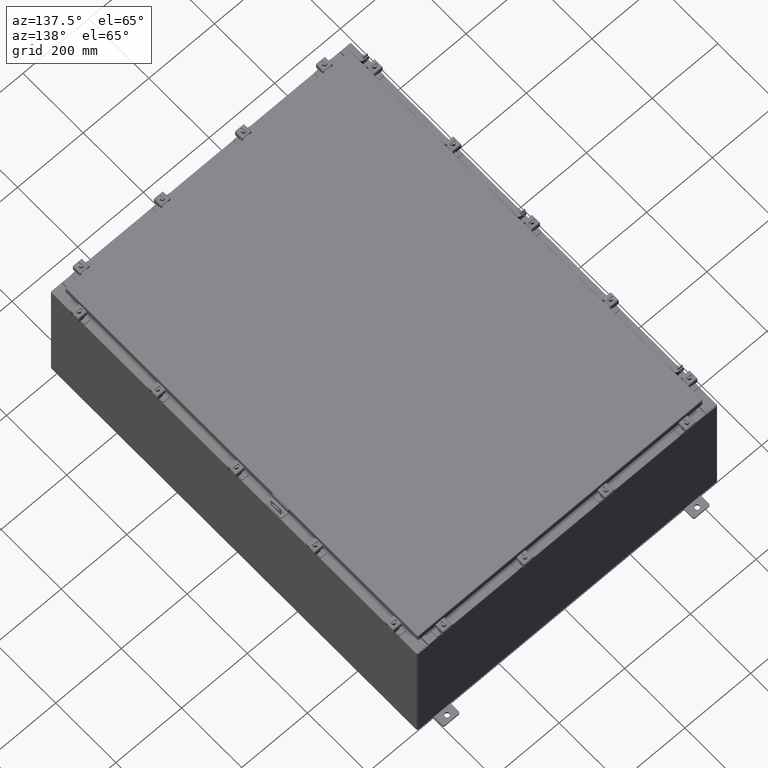
[diagram: clean part render]
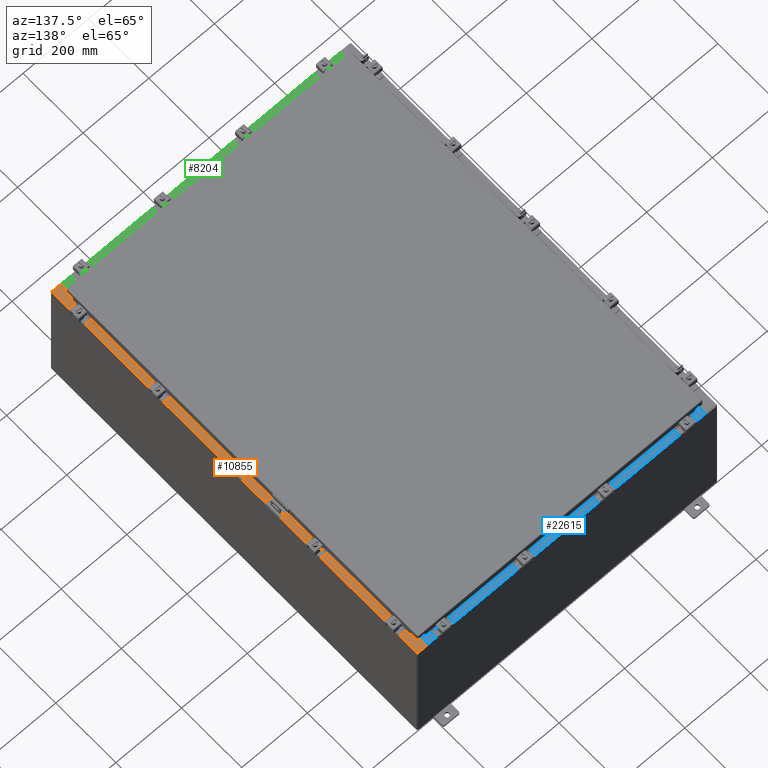
[diagram: same view with three faces highlighted in distinct colors, each labeled with its STEP entity id]
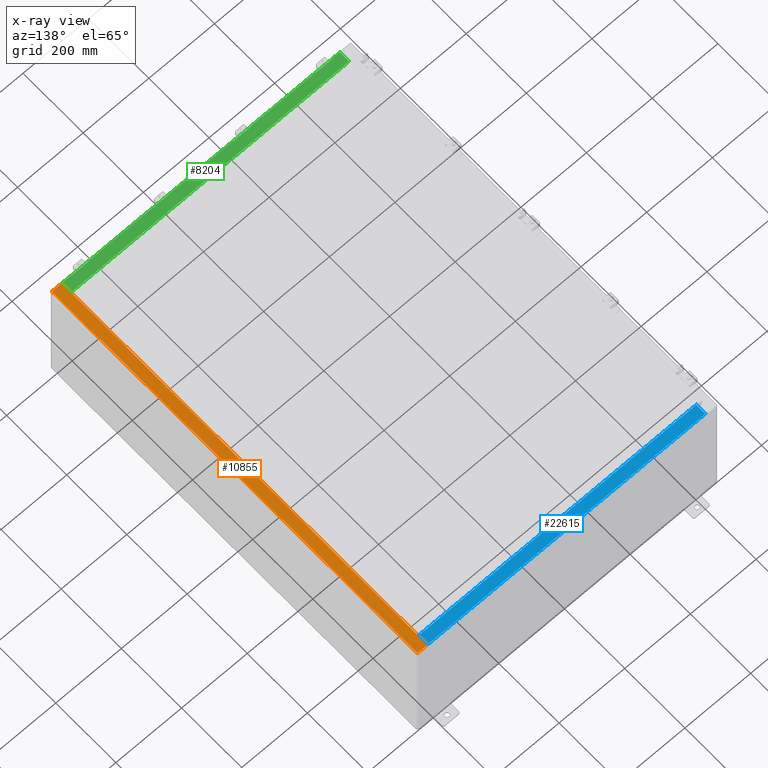
[diagram: x-ray of the same camera — body ghosted, the three highlighted faces saturated]
A machine part, auxiliary view with three faces highlighted in distinct colors.
The next image is the same camera in x-ray (body ghosted, the three faces saturated) — at least one of them is partly hidden behind the body in this view.
Their STEP definitions:

[orange] entity #10855 — the highlighted planar face has unit normal (-0, 0, -1).
#824 = VERTEX_POINT ( 'NONE', #6807 ) ;
#983 = CARTESIAN_POINT ( 'NONE',  ( 16.69970000000005000, 22.63109999999996800, 15.92530000000000500 ) ) ;
#1203 = VERTEX_POINT ( 'NONE', #22691 ) ;
#1245 = CARTESIAN_POINT ( 'NONE',  ( 16.75005000000005100, -22.63109999999998600, 15.92530000000000500 ) ) ;
#1679 = CARTESIAN_POINT ( 'NONE',  ( 16.71270000000005100, -22.59374999999998900, 15.92530000000000900 ) ) ;
#3696 = DIRECTION ( 'NONE',  ( 7.132762385546384700E-015, 0.0000000000000000000, 1.000000000000000000 ) ) ;
#4086 = CARTESIAN_POINT ( 'NONE',  ( 1.138497651359581700E-013, 0.0000000000000000000, 15.92530000000012600 ) ) ;
#4172 = DIRECTION ( 'NONE',  ( -7.132762385546384700E-015, 0.0000000000000000000, -1.000000000000000000 ) ) ;
#4462 = LINE ( 'NONE', #13480, #14972 ) ;
#5006 = ORIENTED_EDGE ( 'NONE', *, *, #17280, .F. ) ;
#5272 = VERTEX_POINT ( 'NONE', #19624 ) ;
#5461 = AXIS2_PLACEMENT_3D ( 'NONE', #20536, #7920, #22649 ) ;
#5602 = DIRECTION ( 'NONE',  ( 1.000000000000000000, 0.0000000000000000000, 0.0000000000000000000 ) ) ;
#5778 = DIRECTION ( 'NONE',  ( -0.0000000000000000000, -1.000000000000000000, -0.0000000000000000000 ) ) ;
#5868 = CARTESIAN_POINT ( 'NONE',  ( 17.91230000000005200, -23.92529999999998900, 15.92530000000000000 ) ) ;
#5902 = DIRECTION ( 'NONE',  ( -1.000000000000000000, 0.0000000000000000000, -4.340572780400098900E-014 ) ) ;
#5942 = CARTESIAN_POINT ( 'NONE',  ( 1.138497651359581700E-013, -23.92529999999998900, 15.92530000000012600 ) ) ;
#6003 = VERTEX_POINT ( 'NONE', #983 ) ;
#6107 = VERTEX_POINT ( 'NONE', #1245 ) ;
#6416 = VERTEX_POINT ( 'NONE', #8886 ) ;
#6487 = LINE ( 'NONE', #21215, #18319 ) ;
#6495 = EDGE_LOOP ( 'NONE', ( #5006, #12977, #20453, #10495, #27166, #11652, #8290, #20689, #17296, #9742, #11598, #8483 ) ) ;
#6753 = CARTESIAN_POINT ( 'NONE',  ( 16.71270000000005100, 22.59374999999997200, 15.92530000000000900 ) ) ;
#6807 = CARTESIAN_POINT ( 'NONE',  ( 16.69970000000005000, -23.92529999999998900, 15.92530000000000500 ) ) ;
#7822 = VECTOR ( 'NONE', #8608, 39.37007874015748100 ) ;
#7920 = DIRECTION ( 'NONE',  ( 7.132762385546384700E-015, 0.0000000000000000000, 1.000000000000000000 ) ) ;
#8035 = DIRECTION ( 'NONE',  ( -0.0000000000000000000, 1.000000000000000000, -0.0000000000000000000 ) ) ;
#8050 = DIRECTION ( 'NONE',  ( 1.000000000000000000, 8.144358738339254500E-032, -7.132762385546384700E-015 ) ) ;
#8174 = CARTESIAN_POINT ( 'NONE',  ( 16.75005000000005100, 22.59374999999997200, 15.92530000000000500 ) ) ;
#8290 = ORIENTED_EDGE ( 'NONE', *, *, #18838, .F. ) ;
#8483 = ORIENTED_EDGE ( 'NONE', *, *, #9554, .F. ) ;
#8608 = DIRECTION ( 'NONE',  ( -1.000000000000000000, 4.379057701015053300E-047, 7.132762385546384700E-015 ) ) ;
#8886 = CARTESIAN_POINT ( 'NONE',  ( 16.69970000000005000, -22.63109999999998600, 15.92530000000000500 ) ) ;
#9361 = EDGE_CURVE ( 'NONE', #5272, #21758, #4462, .T. ) ;
#9554 = EDGE_CURVE ( 'NONE', #6107, #5272, #11674, .T. ) ;
#9688 = LINE ( 'NONE', #20414, #25802 ) ;
#9742 = ORIENTED_EDGE ( 'NONE', *, *, #16205, .F. ) ;
#9794 = LINE ( 'NONE', #21238, #7822 ) ;
#9930 = CARTESIAN_POINT ( 'NONE',  ( 17.91230000000005200, -23.92529999999998900, 15.92530000000000000 ) ) ;
#10081 = CARTESIAN_POINT ( 'NONE',  ( 17.91230000000005200, 23.92529999999998600, 15.92530000000000000 ) ) ;
#10270 = VERTEX_POINT ( 'NONE', #10081 ) ;
#10495 = ORIENTED_EDGE ( 'NONE', *, *, #22130, .F. ) ;
#10855 = ADVANCED_FACE ( 'NONE', ( #19525 ), #18791, .F. ) ;
#11483 = LINE ( 'NONE', #5868, #22044 ) ;
#11582 = DIRECTION ( 'NONE',  ( 1.000000000000000000, 0.0000000000000000000, 4.340572780400098900E-014 ) ) ;
#11598 = ORIENTED_EDGE ( 'NONE', *, *, #9361, .F. ) ;
#11652 = ORIENTED_EDGE ( 'NONE', *, *, #15823, .T. ) ;
#11674 = CIRCLE ( 'NONE', #27044, 0.01867499999999949400 ) ;
#12324 = LINE ( 'NONE', #26291, #22863 ) ;
#12555 = DIRECTION ( 'NONE',  ( 3.161623214578966600E-031, -1.000000000000000000, -2.255110714221909800E-045 ) ) ;
#12977 = ORIENTED_EDGE ( 'NONE', *, *, #17480, .T. ) ;
#13060 = VERTEX_POINT ( 'NONE', #6753 ) ;
#13324 = VECTOR ( 'NONE', #22709, 39.37007874015748100 ) ;
#13480 = CARTESIAN_POINT ( 'NONE',  ( 16.75005000000005100, -22.59374999999998900, 15.92530000000000900 ) ) ;
#13801 = CIRCLE ( 'NONE', #5461, 0.01867499999999949400 ) ;
#14385 = EDGE_CURVE ( 'NONE', #24689, #1203, #13801, .T. ) ;
#14972 = VECTOR ( 'NONE', #26064, 39.37007874015748100 ) ;
#15050 = VECTOR ( 'NONE', #8050, 39.37007874015748100 ) ;
#15247 = EDGE_CURVE ( 'NONE', #10270, #24756, #9794, .T. ) ;
#15256 = LINE ( 'NONE', #18495, #21546 ) ;
#15340 = VECTOR ( 'NONE', #8035, 39.37007874015748100 ) ;
#15707 = LINE ( 'NONE', #5942, #15050 ) ;
#15823 = EDGE_CURVE ( 'NONE', #24756, #6003, #6487, .T. ) ;
#16205 = EDGE_CURVE ( 'NONE', #21758, #13060, #20951, .T. ) ;
#16307 = CARTESIAN_POINT ( 'NONE',  ( 16.75005000000005100, -22.61242499999998800, 15.92530000000000900 ) ) ;
#17280 = EDGE_CURVE ( 'NONE', #6416, #6107, #12324, .T. ) ;
#17296 = ORIENTED_EDGE ( 'NONE', *, *, #17422, .F. ) ;
#17422 = EDGE_CURVE ( 'NONE', #13060, #24689, #9688, .T. ) ;
#17480 = EDGE_CURVE ( 'NONE', #6416, #824, #20230, .T. ) ;
#18319 = VECTOR ( 'NONE', #12555, 39.37007874015748100 ) ;
#18406 = DIRECTION ( 'NONE',  ( 1.000000000000000000, 0.0000000000000000000, 0.0000000000000000000 ) ) ;
#18495 = CARTESIAN_POINT ( 'NONE',  ( 16.75005000000005100, 22.63109999999996800, 15.92530000000000900 ) ) ;
#18791 = PLANE ( 'NONE',  #24442 ) ;
#18838 = EDGE_CURVE ( 'NONE', #1203, #6003, #15256, .T. ) ;
#18889 = DIRECTION ( 'NONE',  ( -1.000000000000000000, 0.0000000000000000000, 7.132762385546384700E-015 ) ) ;
#19525 = FACE_OUTER_BOUND ( 'NONE', #6495, .T. ) ;
#19624 = CARTESIAN_POINT ( 'NONE',  ( 16.75005000000005100, -22.59374999999998900, 15.92530000000000500 ) ) ;
#20230 = LINE ( 'NONE', #24822, #13324 ) ;
#20414 = CARTESIAN_POINT ( 'NONE',  ( 16.71270000000005100, 22.59374999999997200, 15.92530000000000900 ) ) ;
#20453 = ORIENTED_EDGE ( 'NONE', *, *, #23322, .T. ) ;
#20536 = CARTESIAN_POINT ( 'NONE',  ( 16.75005000000005100, 22.61242499999997000, 15.92530000000000900 ) ) ;
#20689 = ORIENTED_EDGE ( 'NONE', *, *, #14385, .F. ) ;
#20951 = LINE ( 'NONE', #1679, #15340 ) ;
#21215 = CARTESIAN_POINT ( 'NONE',  ( 16.69970000000005000, 0.0000000000000000000, 15.92530000000000500 ) ) ;
#21238 = CARTESIAN_POINT ( 'NONE',  ( 1.138497651359581700E-013, 23.92529999999998600, 15.92530000000012600 ) ) ;
#21546 = VECTOR ( 'NONE', #5902, 39.37007874015748100 ) ;
#21758 = VERTEX_POINT ( 'NONE', #23833 ) ;
#22044 = VECTOR ( 'NONE', #5778, 39.37007874015748100 ) ;
#22130 = EDGE_CURVE ( 'NONE', #10270, #22629, #11483, .T. ) ;
#22629 = VERTEX_POINT ( 'NONE', #9930 ) ;
#22649 = DIRECTION ( 'NONE',  ( 1.000000000000000000, 0.0000000000000000000, 0.0000000000000000000 ) ) ;
#22691 = CARTESIAN_POINT ( 'NONE',  ( 16.75005000000005100, 22.63109999999996800, 15.92530000000000500 ) ) ;
#22709 = DIRECTION ( 'NONE',  ( 3.161623214578966600E-031, -1.000000000000000000, -2.255110714221909800E-045 ) ) ;
#22863 = VECTOR ( 'NONE', #11582, 39.37007874015748100 ) ;
#23322 = EDGE_CURVE ( 'NONE', #824, #22629, #15707, .T. ) ;
#23833 = CARTESIAN_POINT ( 'NONE',  ( 16.71270000000005100, -22.59374999999998900, 15.92530000000000900 ) ) ;
#24442 = AXIS2_PLACEMENT_3D ( 'NONE', #4086, #4172, #18889 ) ;
#24689 = VERTEX_POINT ( 'NONE', #8174 ) ;
#24756 = VERTEX_POINT ( 'NONE', #25109 ) ;
#24822 = CARTESIAN_POINT ( 'NONE',  ( 16.69970000000005000, 0.0000000000000000000, 15.92530000000000500 ) ) ;
#25109 = CARTESIAN_POINT ( 'NONE',  ( 16.69970000000005000, 23.92529999999998200, 15.92530000000000500 ) ) ;
#25802 = VECTOR ( 'NONE', #5602, 39.37007874015748100 ) ;
#26064 = DIRECTION ( 'NONE',  ( -1.000000000000000000, 0.0000000000000000000, 0.0000000000000000000 ) ) ;
#26291 = CARTESIAN_POINT ( 'NONE',  ( 16.69970000000005000, -22.63109999999998600, 15.92530000000000500 ) ) ;
#27044 = AXIS2_PLACEMENT_3D ( 'NONE', #16307, #3696, #18406 ) ;
#27166 = ORIENTED_EDGE ( 'NONE', *, *, #15247, .T. ) ;

[blue] entity #22615 — the highlighted planar face has unit normal (0, 0, 1).
#234 = ORIENTED_EDGE ( 'NONE', *, *, #18678, .F. ) ;
#1870 = LINE ( 'NONE', #15342, #18019 ) ;
#2027 = LINE ( 'NONE', #6362, #11910 ) ;
#2240 = FACE_OUTER_BOUND ( 'NONE', #26824, .T. ) ;
#2808 = EDGE_CURVE ( 'NONE', #8628, #9882, #1870, .T. ) ;
#4794 = ORIENTED_EDGE ( 'NONE', *, *, #2808, .F. ) ;
#5363 = DIRECTION ( 'NONE',  ( -0.0000000000000000000, 1.000000000000000000, -3.566381192773190000E-015 ) ) ;
#5702 = DIRECTION ( 'NONE',  ( 6.568047492761433500E-017, 3.566381192773190000E-015, 1.000000000000000000 ) ) ;
#6362 = CARTESIAN_POINT ( 'NONE',  ( 5.292955487724510400E-016, -0.08770000000000026400, 8.000000000000001800 ) ) ;
#6645 = ORIENTED_EDGE ( 'NONE', *, *, #11487, .T. ) ;
#6906 = DIRECTION ( 'NONE',  ( -0.0000000000000000000, -1.000000000000000000, 3.566381192773190000E-015 ) ) ;
#7372 = LINE ( 'NONE', #15845, #12980 ) ;
#7592 = CARTESIAN_POINT ( 'NONE',  ( -16.63720000000000000, -1.287299999999999200, 8.000000000000007100 ) ) ;
#8628 = VERTEX_POINT ( 'NONE', #19209 ) ;
#8955 = VERTEX_POINT ( 'NONE', #7592 ) ;
#9204 = CARTESIAN_POINT ( 'NONE',  ( -16.63720000000000000, -0.08770000000000026400, 8.000000000000003600 ) ) ;
#9882 = VERTEX_POINT ( 'NONE', #21567 ) ;
#10010 = VERTEX_POINT ( 'NONE', #9204 ) ;
#11487 = EDGE_CURVE ( 'NONE', #8628, #10010, #2027, .T. ) ;
#11910 = VECTOR ( 'NONE', #18946, 39.37007874015748100 ) ;
#12980 = VECTOR ( 'NONE', #5363, 39.37007874015748100 ) ;
#13320 = DIRECTION ( 'NONE',  ( -1.000000000000000000, 0.0000000000000000000, 0.0000000000000000000 ) ) ;
#15342 = CARTESIAN_POINT ( 'NONE',  ( 16.63720000000000000, -1.300300000000001300, 8.000000000000003600 ) ) ;
#15406 = EDGE_CURVE ( 'NONE', #9882, #8955, #26891, .T. ) ;
#15845 = CARTESIAN_POINT ( 'NONE',  ( -16.63720000000000000, -0.07469999999999797600, 8.000000000000003600 ) ) ;
#17924 = ORIENTED_EDGE ( 'NONE', *, *, #15406, .F. ) ;
#18019 = VECTOR ( 'NONE', #6906, 39.37007874015748100 ) ;
#18292 = PLANE ( 'NONE',  #23737 ) ;
#18678 = EDGE_CURVE ( 'NONE', #8955, #10010, #7372, .T. ) ;
#18946 = DIRECTION ( 'NONE',  ( -1.000000000000000000, -6.568047492761434800E-017, 6.568047492761457000E-017 ) ) ;
#19209 = CARTESIAN_POINT ( 'NONE',  ( 16.63720000000000400, -0.08770000000000026400, 7.999999999999999100 ) ) ;
#20423 = DIRECTION ( 'NONE',  ( 0.0000000000000000000, -1.000000000000000000, 3.566381192773190000E-015 ) ) ;
#20657 = VECTOR ( 'NONE', #13320, 39.37007874015748100 ) ;
#21567 = CARTESIAN_POINT ( 'NONE',  ( 16.63720000000000000, -1.287299999999999200, 8.000000000000003600 ) ) ;
#22615 = ADVANCED_FACE ( 'NONE', ( #2240 ), #18292, .T. ) ;
#23737 = AXIS2_PLACEMENT_3D ( 'NONE', #24563, #5702, #20423 ) ;
#24563 = CARTESIAN_POINT ( 'NONE',  ( 5.292955487724510400E-016, 3.059669752903974500E-014, 8.000000000000001800 ) ) ;
#25888 = CARTESIAN_POINT ( 'NONE',  ( 16.63720000000000400, -1.287299999999999200, 8.000000000000003600 ) ) ;
#26824 = EDGE_LOOP ( 'NONE', ( #234, #17924, #4794, #6645 ) ) ;
#26891 = LINE ( 'NONE', #25888, #20657 ) ;

[green] entity #8204 — the highlighted planar face has unit normal (-0, -0, 1).
#950 = CARTESIAN_POINT ( 'NONE',  ( 16.63720000000001400, -0.08770000000000026400, 8.000000000000014200 ) ) ;
#1423 = CARTESIAN_POINT ( 'NONE',  ( -16.63719999999998600, -0.07470000000000234800, 7.999999999999983100 ) ) ;
#4657 = FACE_OUTER_BOUND ( 'NONE', #8197, .T. ) ;
#5623 = CARTESIAN_POINT ( 'NONE',  ( 16.63720000000001400, -1.287299999999999200, 8.000000000000017800 ) ) ;
#7038 = ORIENTED_EDGE ( 'NONE', *, *, #11247, .F. ) ;
#8197 = EDGE_LOOP ( 'NONE', ( #15455, #15178, #7038, #20127 ) ) ;
#8204 = ADVANCED_FACE ( 'NONE', ( #4657 ), #9386, .T. ) ;
#9019 = EDGE_CURVE ( 'NONE', #12556, #9646, #27151, .T. ) ;
#9386 = PLANE ( 'NONE',  #25067 ) ;
#9419 = VERTEX_POINT ( 'NONE', #950 ) ;
#9646 = VERTEX_POINT ( 'NONE', #26963 ) ;
#9884 = DIRECTION ( 'NONE',  ( 3.225867722578196700E-016, 1.000000000000000000, -3.767692204910442100E-015 ) ) ;
#10649 = DIRECTION ( 'NONE',  ( -1.000000000000000000, -3.882672471854376700E-016, -9.335202472350261400E-016 ) ) ;
#11247 = EDGE_CURVE ( 'NONE', #9419, #19304, #17197, .T. ) ;
#11493 = DIRECTION ( 'NONE',  ( 1.064881197090255600E-015, 3.767692204910442100E-015, 1.000000000000000000 ) ) ;
#12037 = CARTESIAN_POINT ( 'NONE',  ( 16.63720000000001400, -1.287299999999999200, 8.000000000000017800 ) ) ;
#12556 = VERTEX_POINT ( 'NONE', #17804 ) ;
#13192 = EDGE_CURVE ( 'NONE', #9419, #9646, #16757, .T. ) ;
#15051 = EDGE_CURVE ( 'NONE', #19304, #12556, #17386, .T. ) ;
#15178 = ORIENTED_EDGE ( 'NONE', *, *, #15051, .F. ) ;
#15455 = ORIENTED_EDGE ( 'NONE', *, *, #9019, .F. ) ;
#16757 = LINE ( 'NONE', #16907, #21049 ) ;
#16907 = CARTESIAN_POINT ( 'NONE',  ( 8.519950930240421700E-015, -0.08770000000000026400, 8.000000000000001800 ) ) ;
#17197 = LINE ( 'NONE', #26584, #22143 ) ;
#17386 = LINE ( 'NONE', #12037, #18042 ) ;
#17804 = CARTESIAN_POINT ( 'NONE',  ( -16.63719999999998600, -1.287299999999999200, 7.999999999999987600 ) ) ;
#18042 = VECTOR ( 'NONE', #20501, 39.37007874015748100 ) ;
#19304 = VERTEX_POINT ( 'NONE', #5623 ) ;
#20127 = ORIENTED_EDGE ( 'NONE', *, *, #13192, .T. ) ;
#20350 = DIRECTION ( 'NONE',  ( -3.225867722578196700E-016, -1.000000000000000000, 3.767692204910442100E-015 ) ) ;
#20501 = DIRECTION ( 'NONE',  ( -1.000000000000000000, -3.225867722578232700E-016, -9.992007221626408900E-016 ) ) ;
#21049 = VECTOR ( 'NONE', #10649, 39.37007874015748100 ) ;
#21599 = VECTOR ( 'NONE', #9884, 39.37007874015748100 ) ;
#22012 = CARTESIAN_POINT ( 'NONE',  ( 8.605321180042428600E-015, 2.622574073917692700E-014, 8.000000000000001800 ) ) ;
#22143 = VECTOR ( 'NONE', #20350, 39.37007874015748100 ) ;
#25067 = AXIS2_PLACEMENT_3D ( 'NONE', #22012, #11493, #26200 ) ;
#26200 = DIRECTION ( 'NONE',  ( -3.225867722578196200E-016, -1.000000000000000000, 3.767692204910442100E-015 ) ) ;
#26584 = CARTESIAN_POINT ( 'NONE',  ( 16.63720000000001400, -1.300300000000001300, 8.000000000000017800 ) ) ;
#26963 = CARTESIAN_POINT ( 'NONE',  ( -16.63719999999998600, -0.08770000000000026400, 7.999999999999983100 ) ) ;
#27151 = LINE ( 'NONE', #1423, #21599 ) ;